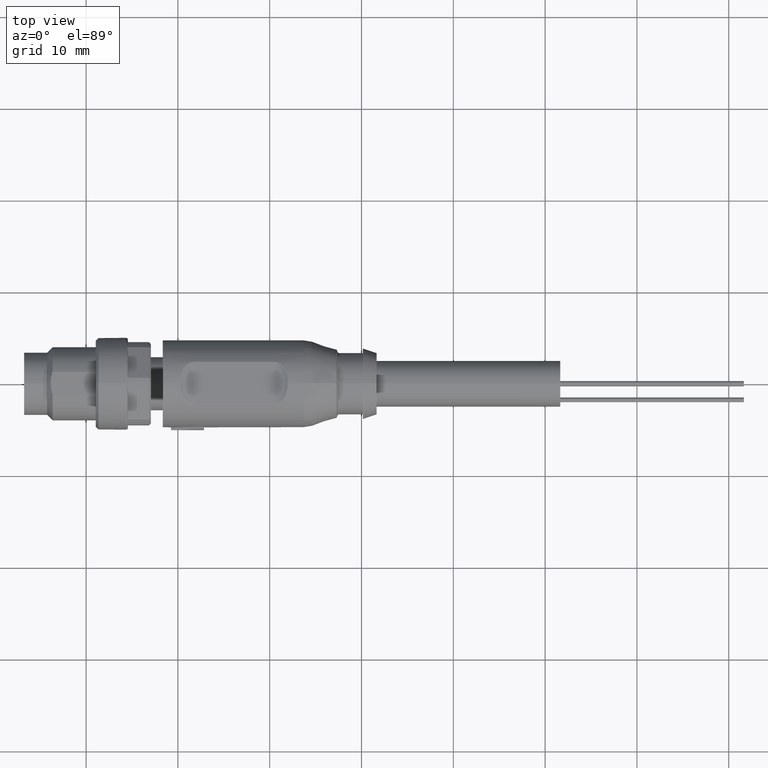
[diagram: clean part render]
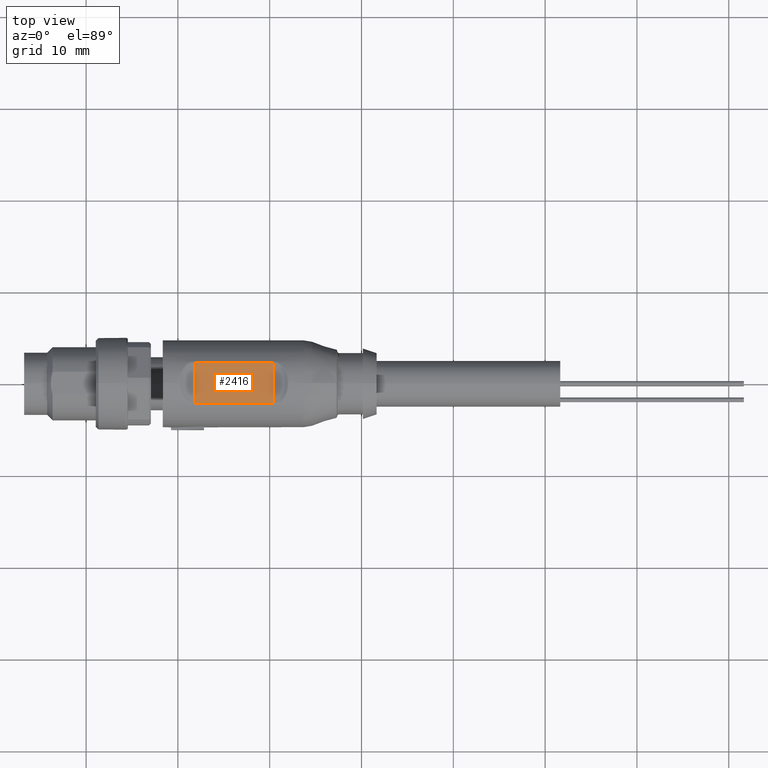
[diagram: same view with one face highlighted and labeled with its STEP entity id]
A machine part, top view. The second image highlights one B-rep face of the part: STEP entity #2416.
In plain terms, the highlighted planar face has unit normal (0, 0, -1).
Its self-contained STEP definition (entity closure, byte-faithful):
#33 = VERTEX_POINT ( 'NONE', #1414 ) ;
#127 = ORIENTED_EDGE ( 'NONE', *, *, #3192, .F. ) ;
#226 = PLANE ( 'NONE',  #780 ) ;
#238 = DIRECTION ( 'NONE',  ( 0.0000000000000000000, 0.0000000000000000000, -1.000000000000000000 ) ) ;
#291 = EDGE_CURVE ( 'NONE', #3403, #998, #372, .T. ) ;
#372 = LINE ( 'NONE', #3535, #2944 ) ;
#552 = ORIENTED_EDGE ( 'NONE', *, *, #4209, .F. ) ;
#580 = VECTOR ( 'NONE', #1572, 1000.000000000000000 ) ;
#614 = CARTESIAN_POINT ( 'NONE',  ( -8.150000000000002100, 8.879616000000001400E-016, 4.150000000000008300 ) ) ;
#780 = AXIS2_PLACEMENT_3D ( 'NONE', #1576, #238, #2577 ) ;
#998 = VERTEX_POINT ( 'NONE', #3544 ) ;
#1414 = CARTESIAN_POINT ( 'NONE',  ( 0.3499999999999990300, 2.258317958127233500, 4.150000000000008300 ) ) ;
#1545 = DIRECTION ( 'NONE',  ( -1.000000000000000000, 0.0000000000000000000, 0.0000000000000000000 ) ) ;
#1572 = DIRECTION ( 'NONE',  ( -0.0000000000000000000, -1.000000000000000000, -0.0000000000000000000 ) ) ;
#1576 = CARTESIAN_POINT ( 'NONE',  ( -8.150000000000002100, 8.879616000000001400E-016, 4.150000000000008300 ) ) ;
#1960 = FACE_OUTER_BOUND ( 'NONE', #3864, .T. ) ;
#2257 = EDGE_CURVE ( 'NONE', #33, #3403, #4023, .T. ) ;
#2319 = VECTOR ( 'NONE', #3568, 1000.000000000000000 ) ;
#2416 = ADVANCED_FACE ( 'NONE', ( #1960 ), #226, .F. ) ;
#2577 = DIRECTION ( 'NONE',  ( -1.000000000000000000, 0.0000000000000000000, -0.0000000000000000000 ) ) ;
#2613 = DIRECTION ( 'NONE',  ( 0.0000000000000000000, 1.000000000000000000, 0.0000000000000000000 ) ) ;
#2752 = CARTESIAN_POINT ( 'NONE',  ( 0.3499999999999983700, -2.258317958127229900, 4.150000000000008300 ) ) ;
#2944 = VECTOR ( 'NONE', #1545, 1000.000000000000000 ) ;
#2987 = LINE ( 'NONE', #614, #3880 ) ;
#3171 = ORIENTED_EDGE ( 'NONE', *, *, #2257, .F. ) ;
#3192 = EDGE_CURVE ( 'NONE', #3652, #33, #4306, .T. ) ;
#3222 = CARTESIAN_POINT ( 'NONE',  ( -3.989804034013975100, 2.258317958127236100, 4.150000000000006600 ) ) ;
#3223 = CARTESIAN_POINT ( 'NONE',  ( 0.3499999999999996400, 8.879616000000001400E-016, 4.150000000000008300 ) ) ;
#3291 = ORIENTED_EDGE ( 'NONE', *, *, #291, .F. ) ;
#3403 = VERTEX_POINT ( 'NONE', #2752 ) ;
#3535 = CARTESIAN_POINT ( 'NONE',  ( -3.989804034013975100, -2.258317958127230800, 4.150000000000006600 ) ) ;
#3544 = CARTESIAN_POINT ( 'NONE',  ( -8.150000000000002100, -2.258317958127232600, 4.150000000000006600 ) ) ;
#3568 = DIRECTION ( 'NONE',  ( 1.000000000000000000, 0.0000000000000000000, 0.0000000000000000000 ) ) ;
#3652 = VERTEX_POINT ( 'NONE', #4262 ) ;
#3864 = EDGE_LOOP ( 'NONE', ( #552, #3291, #3171, #127 ) ) ;
#3880 = VECTOR ( 'NONE', #2613, 1000.000000000000000 ) ;
#4023 = LINE ( 'NONE', #3223, #580 ) ;
#4209 = EDGE_CURVE ( 'NONE', #998, #3652, #2987, .T. ) ;
#4262 = CARTESIAN_POINT ( 'NONE',  ( -8.150000000000002100, 2.258317958127236100, 4.150000000000006600 ) ) ;
#4306 = LINE ( 'NONE', #3222, #2319 ) ;